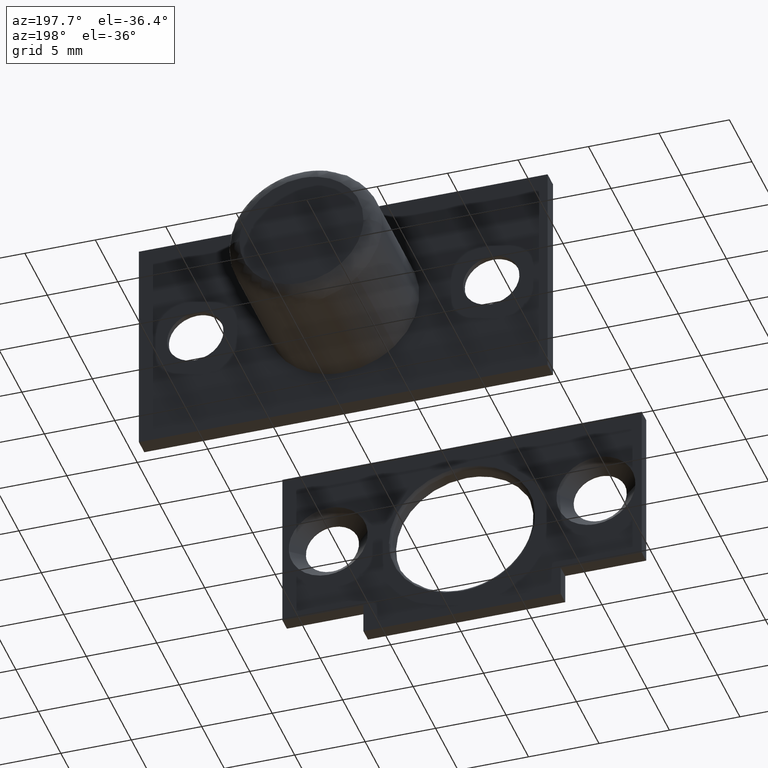
[diagram: clean part render]
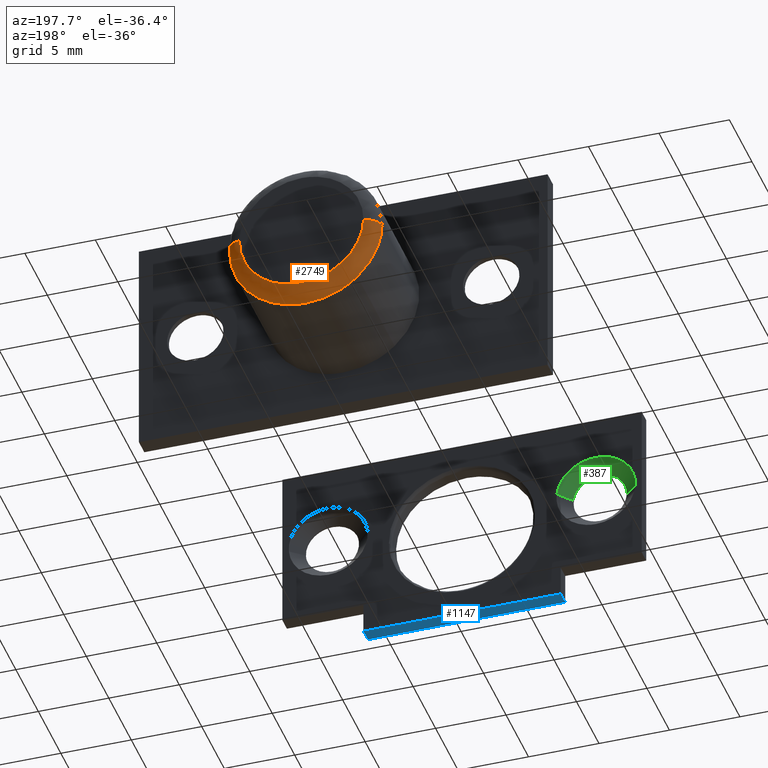
[diagram: same view with three faces highlighted in distinct colors, each labeled with its STEP entity id]
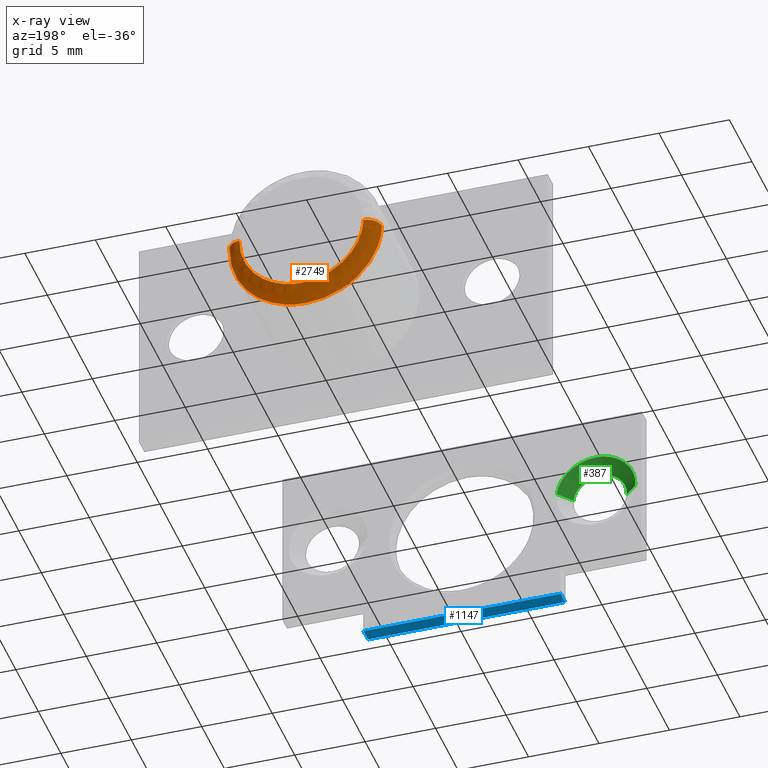
[diagram: x-ray of the same camera — body ghosted, the three highlighted faces saturated]
A machine part, auxiliary view with three faces highlighted in distinct colors.
The next image is the same camera in x-ray (body ghosted, the three faces saturated) — at least one of them is partly hidden behind the body in this view.
Their STEP definitions:

[orange] entity #2749 — the highlighted face is a freeform B-spline surface patch.
#2360=CARTESIAN_POINT('',(-3.648187580205401,9.500000000152436,-3.981298554409539));
#2361=VERTEX_POINT('',#2360);
#2367=CARTESIAN_POINT('',(0.0,9.500000000000000,-5.400001000000002));
#2368=VERTEX_POINT('',#2367);
#2369=CARTESIAN_POINT('',(0.0,9.500000000000000,-5.400001000000002));
#2370=CARTESIAN_POINT('',(-2.099945202813427,9.500000000000000,-5.400001000000003));
#2371=CARTESIAN_POINT('',(-3.648187580205401,9.500000000152436,-3.981298554409539));
#2379=(BOUNDED_CURVE()B_SPLINE_CURVE(2,(#2369,#2370,#2371),.UNSPECIFIED.,.F.,.U.)B_SPLINE_CURVE_WITH_KNOTS((3,3),(0.500000000000000,0.618415192665089),.UNSPECIFIED.)CURVE()GEOMETRIC_REPRESENTATION_ITEM()RATIONAL_B_SPLINE_CURVE((1.0,0.861267972255628,0.853959782864602))REPRESENTATION_ITEM(''));
#2380=EDGE_CURVE('',#2368,#2361,#2379,.T.);
#2382=CARTESIAN_POINT('',(5.398295621806994,9.500000000565605,0.135702540803124));
#2383=VERTEX_POINT('',#2382);
#2384=CARTESIAN_POINT('',(5.398295621806994,9.500000000565605,0.135702540803124));
#2385=CARTESIAN_POINT('',(5.400001000000000,9.500000000000000,0.067861986312420));
#2386=CARTESIAN_POINT('',(5.400001000000000,9.500000000000000,-2.847210E-015));
#2387=CARTESIAN_POINT('',(5.400001000000000,9.500000000000000,-5.400001000000002));
#2388=CARTESIAN_POINT('',(0.0,9.500000000000000,-5.400001000000002));
#2396=(BOUNDED_CURVE()B_SPLINE_CURVE(2,(#2384,#2385,#2386,#2387,#2388),.UNSPECIFIED.,.F.,.U.)B_SPLINE_CURVE_WITH_KNOTS((3,2,3),(0.245579891751720,0.250000000000000,0.500000000000000),.UNSPECIFIED.)CURVE()GEOMETRIC_REPRESENTATION_ITEM()RATIONAL_B_SPLINE_CURVE((0.989826157640693,0.994821521070630,1.0,0.707106781186547,1.0))REPRESENTATION_ITEM(''));
#2397=EDGE_CURVE('',#2383,#2368,#2396,.T.);
#2471=CARTESIAN_POINT('',(-5.398295621806994,9.500000000565605,-0.135702540803128));
#2472=VERTEX_POINT('',#2471);
#2488=CARTESIAN_POINT('',(-3.648187580205402,9.500000000152436,-3.981298554409539));
#2489=CARTESIAN_POINT('',(-5.340609427207808,9.500000000319050,-2.430479994930143));
#2490=CARTESIAN_POINT('',(-5.398295621806994,9.500000000565605,-0.135702540803128));
#2498=(BOUNDED_CURVE()B_SPLINE_CURVE(2,(#2488,#2489,#2490),.UNSPECIFIED.,.F.,.U.)B_SPLINE_CURVE_WITH_KNOTS((3,3),(0.618415192665088,0.745579891751719),.UNSPECIFIED.)CURVE()GEOMETRIC_REPRESENTATION_ITEM()RATIONAL_B_SPLINE_CURVE((0.853959782864602,0.846111603219221,0.989826157640692))REPRESENTATION_ITEM(''));
#2499=EDGE_CURVE('',#2361,#2472,#2498,.T.);
#2661=CARTESIAN_POINT('',(5.395862697820052,9.430275812656380,0.135641381597296));
#2662=CARTESIAN_POINT('',(5.531504079417352,9.430275812656380,-5.260221316222755));
#2663=CARTESIAN_POINT('',(0.135641381597301,9.430275812656380,-5.395862697820055));
#2664=CARTESIAN_POINT('',(-5.260221316222752,9.430275812656380,-5.531504079417355));
#2665=CARTESIAN_POINT('',(-5.395862697820052,9.430275812656380,-0.135641381597304));
#2666=CARTESIAN_POINT('',(5.476010316573635,10.577335749656749,0.137656135186905));
#2667=CARTESIAN_POINT('',(5.613666451760546,10.577335749656751,-5.338354181386730));
#2668=CARTESIAN_POINT('',(0.137656135186910,10.577335749656749,-5.476010316573639));
#2669=CARTESIAN_POINT('',(-5.338354181386729,10.577335749656751,-5.613666451760548));
#2670=CARTESIAN_POINT('',(-5.476010316573635,10.577335749656749,-0.137656135186912));
#2671=CARTESIAN_POINT('',(4.329282701616886,10.497592346482175,0.108829657064816));
#2672=CARTESIAN_POINT('',(4.438112358681705,10.497592346482175,-4.220453044552069));
#2673=CARTESIAN_POINT('',(0.108829657064820,10.497592346482175,-4.329282701616886));
#2674=CARTESIAN_POINT('',(-4.220453044552067,10.497592346482175,-4.438112358681708));
#2675=CARTESIAN_POINT('',(-4.329282701616886,10.497592346482175,-0.108829657064822));
#2683=(BOUNDED_SURFACE()B_SPLINE_SURFACE(2,2,((#2661,#2666,#2671),(#2662,#2667,#2672),(#2663,#2668,#2673),(#2664,#2669,#2674),(#2665,#2670,#2675)),.UNSPECIFIED.,.F.,.F.,.U.)B_SPLINE_SURFACE_WITH_KNOTS((3,2,3),(3,3),(0.0,8.942982330219715,17.885964660439431),(0.0,1.822370399371875),.UNSPECIFIED.)GEOMETRIC_REPRESENTATION_ITEM()RATIONAL_B_SPLINE_SURFACE(((0.910892942541887,0.599412921378678,0.915966645999969),(0.644098576606337,0.423848941437702,0.647686226727276),(0.910892942541887,0.599412921378678,0.915966645999969),(0.644098576606337,0.423848941437702,0.647686226727276),(0.910892942541887,0.599412921378678,0.915966645999969)))REPRESENTATION_ITEM('')SURFACE());
#2684=ORIENTED_EDGE('',*,*,#2397,.T.);
#2685=ORIENTED_EDGE('',*,*,#2380,.T.);
#2686=ORIENTED_EDGE('',*,*,#2499,.T.);
#2687=CARTESIAN_POINT('',(-4.398611447640397,10.500000000000000,-0.110572447457991));
#2688=VERTEX_POINT('',#2687);
#2689=CARTESIAN_POINT('',(-5.398295621806994,9.500000000565605,-0.135702540803128));
#2690=CARTESIAN_POINT('',(-5.398295620683151,10.499999969670689,-0.135702540495693));
#2691=CARTESIAN_POINT('',(-4.398611447640398,10.500000000000000,-0.110572447457991));
#2699=(BOUNDED_CURVE()B_SPLINE_CURVE(2,(#2689,#2690,#2691),.UNSPECIFIED.,.F.,.U.)B_SPLINE_CURVE_WITH_KNOTS((3,3),(-1.723441280820086,-0.263586910317547),.UNSPECIFIED.)CURVE()GEOMETRIC_REPRESENTATION_ITEM()RATIONAL_B_SPLINE_CURVE((0.883897566728178,0.626638732978030,0.888510397801046))REPRESENTATION_ITEM(''));
#2700=EDGE_CURVE('',#2472,#2688,#2699,.T.);
#2701=ORIENTED_EDGE('',*,*,#2700,.T.);
#2702=CARTESIAN_POINT('',(0.0,10.500000000000000,-4.400001000000002));
#2703=VERTEX_POINT('',#2702);
#2704=CARTESIAN_POINT('',(0.0,10.500000000000000,-4.400001000000002));
#2705=CARTESIAN_POINT('',(-4.290783626477108,10.500000000000000,-4.400001000000002));
#2706=CARTESIAN_POINT('',(-4.398611447640397,10.499999999999996,-0.110572447457991));
#2714=(BOUNDED_CURVE()B_SPLINE_CURVE(2,(#2704,#2705,#2706),.UNSPECIFIED.,.F.,.U.)B_SPLINE_CURVE_WITH_KNOTS((3,3),(0.500000000000000,0.745579891610994),.UNSPECIFIED.)CURVE()GEOMETRIC_REPRESENTATION_ITEM()RATIONAL_B_SPLINE_CURVE((1.0,0.712285260280789,0.989826157322612))REPRESENTATION_ITEM(''));
#2715=EDGE_CURVE('',#2703,#2688,#2714,.T.);
#2716=ORIENTED_EDGE('',*,*,#2715,.F.);
#2717=CARTESIAN_POINT('',(4.398611447640397,10.500000000000000,0.110572447457986));
#2718=VERTEX_POINT('',#2717);
#2719=CARTESIAN_POINT('',(4.398611447640397,10.500000000000005,0.110572447457986));
#2720=CARTESIAN_POINT('',(4.400001000000000,10.500000000000002,0.055294955906964));
#2721=CARTESIAN_POINT('',(4.400001000000000,10.500000000000000,-2.847210E-015));
#2722=CARTESIAN_POINT('',(4.400000999999999,10.500000000000002,-4.400001000000002));
#2723=CARTESIAN_POINT('',(0.0,10.500000000000000,-4.400001000000002));
#2731=(BOUNDED_CURVE()B_SPLINE_CURVE(2,(#2719,#2720,#2721,#2722,#2723),.UNSPECIFIED.,.F.,.U.)B_SPLINE_CURVE_WITH_KNOTS((3,2,3),(0.245579891610995,0.250000000000000,0.500000000000000),.UNSPECIFIED.)CURVE()GEOMETRIC_REPRESENTATION_ITEM()RATIONAL_B_SPLINE_CURVE((0.989826157322614,0.994821520905760,1.0,0.707106781186548,1.0))REPRESENTATION_ITEM(''));
#2732=EDGE_CURVE('',#2718,#2703,#2731,.T.);
#2733=ORIENTED_EDGE('',*,*,#2732,.F.);
#2734=CARTESIAN_POINT('',(5.398295621806994,9.500000000565605,0.135702540803124));
#2735=CARTESIAN_POINT('',(5.398295620683154,10.499999969670688,0.135702540495688));
#2736=CARTESIAN_POINT('',(4.398611447640398,10.500000000000000,0.110572447457986));
#2744=(BOUNDED_CURVE()B_SPLINE_CURVE(2,(#2734,#2735,#2736),.UNSPECIFIED.,.F.,.U.)B_SPLINE_CURVE_WITH_KNOTS((3,3),(-1.723441280820087,-0.263586910317547),.UNSPECIFIED.)CURVE()GEOMETRIC_REPRESENTATION_ITEM()RATIONAL_B_SPLINE_CURVE((0.883897566728178,0.626638732978030,0.888510397801046))REPRESENTATION_ITEM(''));
#2745=EDGE_CURVE('',#2383,#2718,#2744,.T.);
#2746=ORIENTED_EDGE('',*,*,#2745,.F.);
#2747=EDGE_LOOP('',(#2684,#2685,#2686,#2701,#2716,#2733,#2746));
#2748=FACE_OUTER_BOUND('',#2747,.T.);
#2749=ADVANCED_FACE('',(#2748),#2683,.T.);

[blue] entity #1147 — the highlighted face is a freeform B-spline surface patch.
#1089=CARTESIAN_POINT('',(81.831085000000186,-24.781389287852100,-7.0));
#1090=VERTEX_POINT('',#1089);
#1105=CARTESIAN_POINT('',(81.831085000000186,-23.781389287852249,-7.0));
#1106=VERTEX_POINT('',#1105);
#1112=CARTESIAN_POINT('',(81.831085000000186,-23.781389287852249,-7.0));
#1113=CARTESIAN_POINT('',(81.831085000000186,-24.781389287852100,-7.0));
#1114=QUASI_UNIFORM_CURVE('',1,(#1112,#1113),.UNSPECIFIED.,.F.,.U.);
#1115=EDGE_CURVE('',#1106,#1090,#1114,.T.);
#1120=CARTESIAN_POINT('',(81.131785158556880,-24.831339238977481,-7.0));
#1121=CARTESIAN_POINT('',(96.530385342122528,-24.831339238977481,-7.0));
#1122=CARTESIAN_POINT('',(81.131785158556880,-23.731439265201299,-7.0));
#1123=CARTESIAN_POINT('',(96.530385342122528,-23.731439265201299,-7.0));
#1124=B_SPLINE_SURFACE_WITH_KNOTS('',1,1,((#1120,#1122),(#1121,#1123)),.UNSPECIFIED.,.F.,.F.,.U.,(2,2),(2,2),(0.0,15.398600183565650),(0.041708374062181,0.958291685542464),.UNSPECIFIED.);
#1125=CARTESIAN_POINT('',(95.831085000000186,-24.781389287852100,-7.0));
#1126=VERTEX_POINT('',#1125);
#1127=CARTESIAN_POINT('',(95.831085000000186,-24.781389287852100,-7.0));
#1128=CARTESIAN_POINT('',(81.831085000000186,-24.781389287852100,-7.0));
#1129=QUASI_UNIFORM_CURVE('',1,(#1127,#1128),.UNSPECIFIED.,.F.,.U.);
#1130=EDGE_CURVE('',#1126,#1090,#1129,.T.);
#1131=ORIENTED_EDGE('',*,*,#1130,.T.);
#1132=ORIENTED_EDGE('',*,*,#1115,.F.);
#1133=CARTESIAN_POINT('',(95.831085000000186,-23.781389287852249,-7.0));
#1134=VERTEX_POINT('',#1133);
#1135=CARTESIAN_POINT('',(95.831085000000186,-23.781389287852249,-7.0));
#1136=CARTESIAN_POINT('',(81.831085000000186,-23.781389287852249,-7.0));
#1137=QUASI_UNIFORM_CURVE('',1,(#1135,#1136),.UNSPECIFIED.,.F.,.U.);
#1138=EDGE_CURVE('',#1134,#1106,#1137,.T.);
#1139=ORIENTED_EDGE('',*,*,#1138,.F.);
#1140=CARTESIAN_POINT('',(95.831085000000186,-23.781389287852249,-7.0));
#1141=CARTESIAN_POINT('',(95.831085000000186,-24.781389287852100,-7.0));
#1142=QUASI_UNIFORM_CURVE('',1,(#1140,#1141),.UNSPECIFIED.,.F.,.U.);
#1143=EDGE_CURVE('',#1134,#1126,#1142,.T.);
#1144=ORIENTED_EDGE('',*,*,#1143,.T.);
#1145=EDGE_LOOP('',(#1131,#1132,#1139,#1144));
#1146=FACE_OUTER_BOUND('',#1145,.T.);
#1147=ADVANCED_FACE('',(#1146),#1124,.F.);

[green] entity #387 — the highlighted face is a freeform B-spline surface patch.
#66=CARTESIAN_POINT('',(96.444366899904452,-23.881389287940159,1.324263046553478));
#67=VERTEX_POINT('',#66);
#133=CARTESIAN_POINT('',(100.227541117059900,-23.881389287961500,0.984005774043575));
#134=VERTEX_POINT('',#133);
#148=CARTESIAN_POINT('',(98.331085000000186,-23.881389287852151,2.999998000000018));
#149=VERTEX_POINT('',#148);
#150=CARTESIAN_POINT('',(100.227541117059900,-23.881389287961497,0.984005774043575));
#151=CARTESIAN_POINT('',(100.231085000000190,-23.881389287852148,1.041947748896823));
#152=CARTESIAN_POINT('',(100.231085000000210,-23.881389287852151,1.099998000000018));
#153=CARTESIAN_POINT('',(100.231085000000210,-23.881389287852151,2.999998000000018));
#154=CARTESIAN_POINT('',(98.331085000000186,-23.881389287852151,2.999998000000018));
#162=(BOUNDED_CURVE()B_SPLINE_CURVE(2,(#150,#151,#152,#153,#154),.UNSPECIFIED.,.F.,.U.)B_SPLINE_CURVE_WITH_KNOTS((3,2,3),(0.739332962090291,0.750000000000000,1.0),.UNSPECIFIED.)CURVE()GEOMETRIC_REPRESENTATION_ITEM()RATIONAL_B_SPLINE_CURVE((0.976072041348129,0.987502787725681,1.0,0.707106781186547,1.0))REPRESENTATION_ITEM(''));
#163=EDGE_CURVE('',#134,#149,#162,.T.);
#165=CARTESIAN_POINT('',(98.331085000000186,-23.881389287852151,2.999998000000018));
#166=CARTESIAN_POINT('',(96.643553401945027,-23.881389287852144,2.999998000000017));
#167=CARTESIAN_POINT('',(96.444366899904452,-23.881389287940159,1.324263046553478));
#175=(BOUNDED_CURVE()B_SPLINE_CURVE(2,(#165,#166,#167),.UNSPECIFIED.,.F.,.U.)B_SPLINE_CURVE_WITH_KNOTS((3,3),(0.0,0.229562473391093),.UNSPECIFIED.)CURVE()GEOMETRIC_REPRESENTATION_ITEM()RATIONAL_B_SPLINE_CURVE((1.0,0.731050832998821,0.956026753943761))REPRESENTATION_ITEM(''));
#176=EDGE_CURVE('',#149,#67,#175,.T.);
#283=CARTESIAN_POINT('',(95.550658326180468,-24.781389287878941,1.430493857253572));
#284=VERTEX_POINT('',#283);
#285=CARTESIAN_POINT('',(96.444366899904452,-23.881389287940159,1.324263046553478));
#286=CARTESIAN_POINT('',(95.550658326180468,-24.781389287878941,1.430493857253572));
#287=QUASI_UNIFORM_CURVE('',1,(#285,#286),.UNSPECIFIED.,.F.,.U.);
#288=EDGE_CURVE('',#67,#284,#287,.T.);
#307=CARTESIAN_POINT('',(101.125862435680800,-24.781389288036412,0.929062087908417));
#308=VERTEX_POINT('',#307);
#322=CARTESIAN_POINT('',(100.227541117059900,-23.881389287961500,0.984005774043575));
#323=CARTESIAN_POINT('',(101.125862435680800,-24.781389288036412,0.929062087908417));
#324=QUASI_UNIFORM_CURVE('',1,(#322,#323),.UNSPECIFIED.,.F.,.U.);
#325=EDGE_CURVE('',#134,#308,#324,.T.);
#333=CARTESIAN_POINT('',(100.205083084037200,-23.858889287852140,0.985379367023324));
#334=CARTESIAN_POINT('',(100.319701717013940,-23.858889287852143,2.859377451060374));
#335=CARTESIAN_POINT('',(98.445703632976887,-23.858889287852140,2.973996084037068));
#336=CARTESIAN_POINT('',(96.675987095949026,-23.858889287852140,3.082236584365333));
#337=CARTESIAN_POINT('',(96.466709614252395,-23.858889287852151,1.321607275568081));
#338=CARTESIAN_POINT('',(101.148881919370000,-24.804451787852159,0.927654157359395));
#339=CARTESIAN_POINT('',(101.321225762010660,-24.804451787852152,3.745451076729232));
#340=CARTESIAN_POINT('',(98.503428842640815,-24.804451787852159,3.917794919369854));
#341=CARTESIAN_POINT('',(95.842432628892098,-24.804451787852159,4.080548420013245));
#342=CARTESIAN_POINT('',(95.527757043980145,-24.804451787852162,1.433216021575714));
#350=(BOUNDED_SURFACE()B_SPLINE_SURFACE(2,1,((#333,#338),(#334,#339),(#335,#340),(#336,#341),(#337,#342)),.UNSPECIFIED.,.F.,.F.,.U.)B_SPLINE_SURFACE_WITH_KNOTS((3,2,3),(2,2),(0.0,4.677403099707588,9.167710075426871),(0.0,1.0),.UNSPECIFIED.)GEOMETRIC_REPRESENTATION_ITEM()RATIONAL_B_SPLINE_SURFACE(((1.0,1.0),(0.707106781186548,0.707106781186548),(1.0,1.0),(0.718822509939086,0.718822509939086),(0.977505800795127,0.977505800795127)))REPRESENTATION_ITEM('')SURFACE());
#351=ORIENTED_EDGE('',*,*,#176,.F.);
#352=ORIENTED_EDGE('',*,*,#163,.F.);
#353=ORIENTED_EDGE('',*,*,#325,.T.);
#354=CARTESIAN_POINT('',(98.331085000000186,-24.781389287852150,3.899998000000018));
#355=VERTEX_POINT('',#354);
#356=CARTESIAN_POINT('',(101.125862435680760,-24.781389288036412,0.929062087908417));
#357=CARTESIAN_POINT('',(101.131085000000180,-24.781389287852154,1.014450261377340));
#358=CARTESIAN_POINT('',(101.131085000000200,-24.781389287852150,1.099998000000018));
#359=CARTESIAN_POINT('',(101.131085000000180,-24.781389287852150,3.899998000000019));
#360=CARTESIAN_POINT('',(98.331085000000186,-24.781389287852150,3.899998000000018));
#368=(BOUNDED_CURVE()B_SPLINE_CURVE(2,(#356,#357,#358,#359,#360),.UNSPECIFIED.,.F.,.U.)B_SPLINE_CURVE_WITH_KNOTS((3,2,3),(0.739332962071229,0.750000000000000,1.0),.UNSPECIFIED.)CURVE()GEOMETRIC_REPRESENTATION_ITEM()RATIONAL_B_SPLINE_CURVE((0.976072041307275,0.987502787703348,1.0,0.707106781186547,1.0))REPRESENTATION_ITEM(''));
#369=EDGE_CURVE('',#308,#355,#368,.T.);
#370=ORIENTED_EDGE('',*,*,#369,.T.);
#371=CARTESIAN_POINT('',(98.331085000000186,-24.781389287852150,3.899998000000018));
#372=CARTESIAN_POINT('',(95.844196327717313,-24.781389287852143,3.899998000000018));
#373=CARTESIAN_POINT('',(95.550658326180468,-24.781389287878937,1.430493857253572));
#381=(BOUNDED_CURVE()B_SPLINE_CURVE(2,(#371,#372,#373),.UNSPECIFIED.,.F.,.U.)B_SPLINE_CURVE_WITH_KNOTS((3,3),(0.0,0.229562473489937),.UNSPECIFIED.)CURVE()GEOMETRIC_REPRESENTATION_ITEM()RATIONAL_B_SPLINE_CURVE((1.0,0.731050832883018,0.956026754137498))REPRESENTATION_ITEM(''));
#382=EDGE_CURVE('',#355,#284,#381,.T.);
#383=ORIENTED_EDGE('',*,*,#382,.T.);
#384=ORIENTED_EDGE('',*,*,#288,.F.);
#385=EDGE_LOOP('',(#351,#352,#353,#370,#383,#384));
#386=FACE_OUTER_BOUND('',#385,.T.);
#387=ADVANCED_FACE('',(#386),#350,.F.);